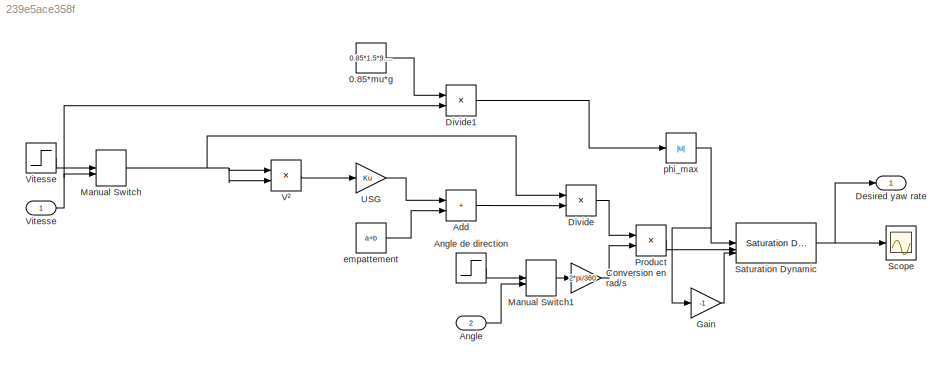
MODEL slx_239e5ace358f
KIND model
CONFIG AbsTol = auto
CONFIG EnableMultiTasking = off
CONFIG FixedStep = auto
CONFIG MaxStep = auto
CONFIG MinStep = auto
CONFIG RelTol = 1e-3
CONFIG SampleTimeConstraint = Unconstrained
CONFIG SolverName = FixedStepAuto
CONFIG StartTime = 0.0
CONFIG StopTime = 10.0
BLOCK [Constant] 0.85*mu*g
  Value = 0.85*1.5*9.81
BLOCK [Sum] Add
  IconShape = rectangular
BLOCK [Inport] Angle
  Port = 2
BLOCK [Step] Angle de direction
  After = 10
  SampleTime = 0
  Time = 2
BLOCK [Gain] Conversion en rad//s
  Gain = 2*pi/360
BLOCK [Outport] Desired yaw rate
BLOCK [Product] Divide
  Inputs = */
BLOCK [Product] Divide1
  Inputs = */
BLOCK [Gain] Gain
  Gain = -1
BLOCK [ManualSwitch] Manual Switch
  CurrentSetting = 0
BLOCK [ManualSwitch] Manual Switch1
  CurrentSetting = 0
BLOCK [Product] Product
BLOCK [Reference] Saturation Dynamic  REF=simulink/Discontinuities/Saturation
Dynamic
  SourceBlock = simulink/Discontinuities/Saturation\nDynamic
  SourceType = Saturation Dynamic
BLOCK [Scope] Scope
  Floating = off
  NumInputPorts = 1
  ScopeSpecificationString = Simulink.scopes.TimeScopeBlockCfg('CurrentConfiguration', extmgr.ConfigurationSet(extmgr.Configuration('Core','General UI',true),extmgr.Configuration('Core','Source UI',true),extmgr.Configuration('Sources','WiredSimulink',true),extmgr.Configuration('Visuals','Time Domain',true,'SerializedDisplays',{struct('MinYLimReal','0.18638','MaxYLimReal','0.82412','YLabelReal','','MinYLimMag','0.18638','MaxYL...<+1425ch>
BLOCK [Gain] USG
  Gain = Ku
BLOCK [Inport] Vitesse
BLOCK [Step] Vitesse 
  After = 20
  SampleTime = 0
BLOCK [Product] V²
BLOCK [Constant] empattement
  Value = a+b
BLOCK [Abs] phi_max
  SaturateOnIntegerOverflow = off
LINE 0.85*mu*g:1 -> Divide1:1
LINE Add:1 -> Divide:2
LINE Angle de direction:1 -> Manual Switch1:1
LINE Angle:1 -> Manual Switch1:2
LINE Conversion en rad//s:1 -> Product:2
LINE Divide1:1 -> phi_max:1
LINE Divide:1 -> Product:1
LINE Gain:1 -> Saturation Dynamic:3
LINE Manual Switch1:1 -> Conversion en rad//s:1
NET Manual Switch:1 -> Divide:1, V²:1, V²:2
LINE Product:1 -> Saturation Dynamic:2
NET Saturation Dynamic:1 -> Desired yaw rate:1, Scope:1
LINE USG:1 -> Add:1
LINE Vitesse :1 -> Manual Switch:1
NET Vitesse:1 -> Divide1:2, Manual Switch:2
LINE V²:1 -> USG:1
LINE empattement:1 -> Add:2
NET phi_max:1 -> Gain:1, Saturation Dynamic:1
note: NET lines group one-source signal fan-out (src -> all destinations, sorted); 1:1 wires keep LINE
